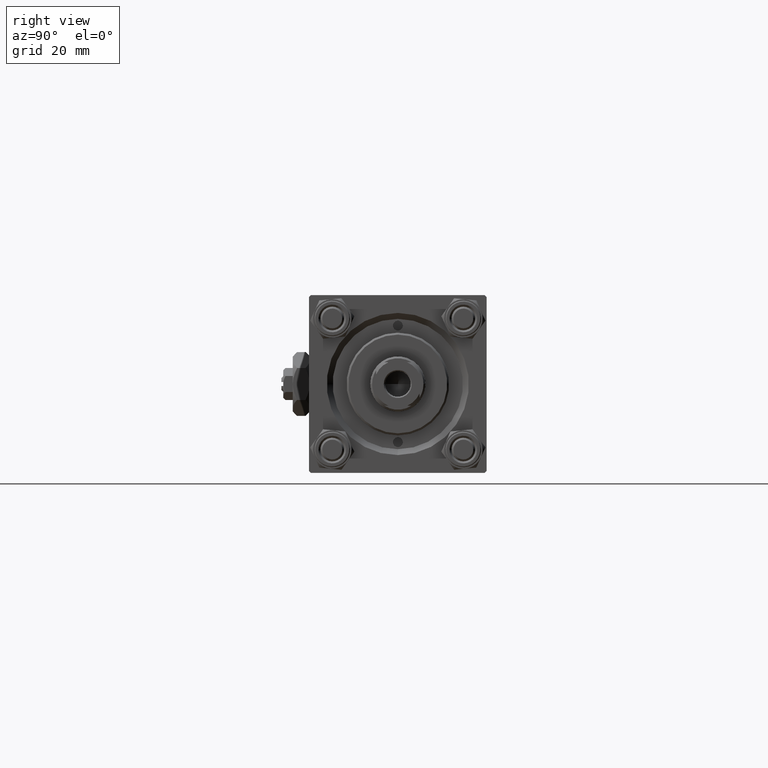
[diagram: clean part render]
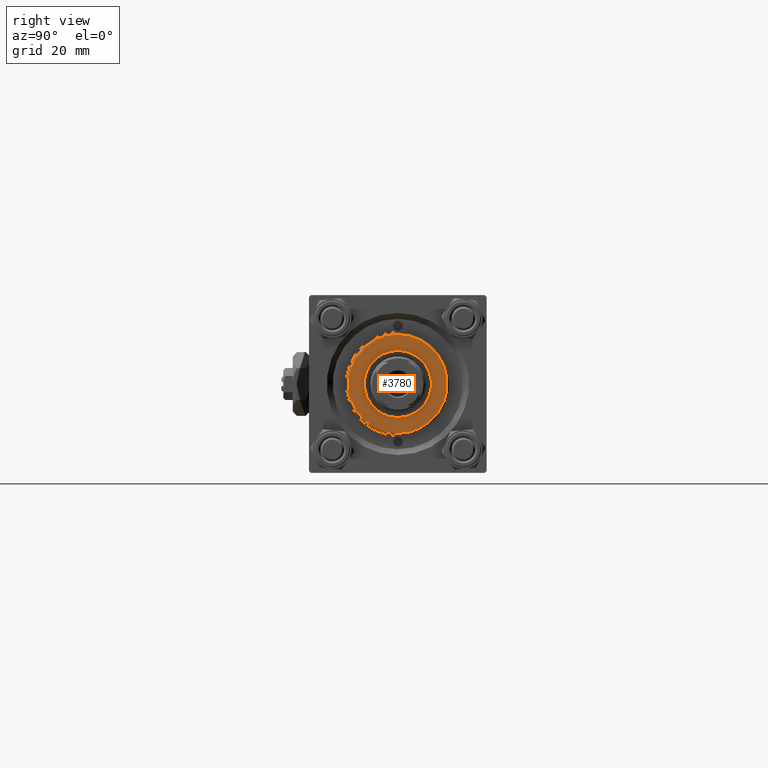
[diagram: same view with one face highlighted and labeled with its STEP entity id]
A machine part, right view. The second image highlights one B-rep face of the part: STEP entity #3780.
In plain terms, the highlighted planar face has unit normal (1, 0, -0).
Its self-contained STEP definition (entity closure, byte-faithful):
#500 = CARTESIAN_POINT ( 'NONE',  ( 12.50000000000001066, 1.561424668912876097E-15, 36.69999999999999574 ) ) ;
#794 = AXIS2_PLACEMENT_3D ( 'NONE', #27751, #41239, #49338 ) ;
#1261 = DIRECTION ( 'NONE',  ( 0.000000000000000000, 0.000000000000000000, 1.000000000000000000 ) ) ;
#2278 = DIRECTION ( 'NONE',  ( 0.000000000000000000, 0.000000000000000000, 1.000000000000000000 ) ) ;
#2439 = EDGE_CURVE ( 'NONE', #30449, #14071, #4502, .T. ) ;
#3276 = AXIS2_PLACEMENT_3D ( 'NONE', #38351, #2278, #17709 ) ;
#3780 = ADVANCED_FACE ( 'NONE', ( #29242, #48562 ), #8846, .T. ) ;
#4502 = CIRCLE ( 'NONE', #41314, 8.500000000000000000 ) ;
#6230 = CIRCLE ( 'NONE', #35441, 12.50000000000001066 ) ;
#7956 = ORIENTED_EDGE ( 'NONE', *, *, #49291, .T. ) ;
#8846 = PLANE ( 'NONE',  #794 ) ;
#9869 = DIRECTION ( 'NONE',  ( 1.000000000000000000, 0.000000000000000000, 0.000000000000000000 ) ) ;
#10444 = AXIS2_PLACEMENT_3D ( 'NONE', #45674, #1261, #9869 ) ;
#10998 = CARTESIAN_POINT ( 'NONE',  ( 0.000000000000000000, 0.000000000000000000, 36.69999999999999574 ) ) ;
#14071 = VERTEX_POINT ( 'NONE', #38181 ) ;
#15099 = ORIENTED_EDGE ( 'NONE', *, *, #39544, .F. ) ;
#17709 = DIRECTION ( 'NONE',  ( 1.000000000000000000, 0.000000000000000000, 0.000000000000000000 ) ) ;
#18636 = DIRECTION ( 'NONE',  ( 1.000000000000000000, 0.000000000000000000, 0.000000000000000000 ) ) ;
#19753 = VERTEX_POINT ( 'NONE', #500 ) ;
#22670 = EDGE_CURVE ( 'NONE', #47489, #19753, #6230, .T. ) ;
#22804 = ORIENTED_EDGE ( 'NONE', *, *, #2439, .F. ) ;
#23019 = DIRECTION ( 'NONE',  ( 0.000000000000000000, 0.000000000000000000, 1.000000000000000000 ) ) ;
#23575 = ORIENTED_EDGE ( 'NONE', *, *, #22670, .T. ) ;
#26227 = CARTESIAN_POINT ( 'NONE',  ( 0.000000000000000000, 0.000000000000000000, 36.69999999999999574 ) ) ;
#27751 = CARTESIAN_POINT ( 'NONE',  ( 0.000000000000000000, 0.000000000000000000, 36.69999999999999574 ) ) ;
#29199 = CIRCLE ( 'NONE', #3276, 12.50000000000001066 ) ;
#29242 = FACE_BOUND ( 'NONE', #50897, .T. ) ;
#30449 = VERTEX_POINT ( 'NONE', #41990 ) ;
#35441 = AXIS2_PLACEMENT_3D ( 'NONE', #26227, #41917, #18636 ) ;
#38181 = CARTESIAN_POINT ( 'NONE',  ( 8.500000000000000000, 0.000000000000000000, 36.69999999999999574 ) ) ;
#38351 = CARTESIAN_POINT ( 'NONE',  ( 0.000000000000000000, 0.000000000000000000, 36.69999999999999574 ) ) ;
#38853 = CIRCLE ( 'NONE', #10444, 8.500000000000000000 ) ;
#39232 = DIRECTION ( 'NONE',  ( 1.000000000000000000, 0.000000000000000000, 0.000000000000000000 ) ) ;
#39544 = EDGE_CURVE ( 'NONE', #14071, #30449, #38853, .T. ) ;
#40880 = EDGE_LOOP ( 'NONE', ( #23575, #7956 ) ) ;
#41239 = DIRECTION ( 'NONE',  ( 0.000000000000000000, 0.000000000000000000, 1.000000000000000000 ) ) ;
#41314 = AXIS2_PLACEMENT_3D ( 'NONE', #10998, #23019, #39232 ) ;
#41917 = DIRECTION ( 'NONE',  ( 0.000000000000000000, 0.000000000000000000, 1.000000000000000000 ) ) ;
#41990 = CARTESIAN_POINT ( 'NONE',  ( -8.500000000000000000, 1.040949779275250140E-15, 36.69999999999999574 ) ) ;
#45674 = CARTESIAN_POINT ( 'NONE',  ( 0.000000000000000000, 0.000000000000000000, 36.69999999999999574 ) ) ;
#47489 = VERTEX_POINT ( 'NONE', #49759 ) ;
#48562 = FACE_OUTER_BOUND ( 'NONE', #40880, .T. ) ;
#49291 = EDGE_CURVE ( 'NONE', #19753, #47489, #29199, .T. ) ;
#49338 = DIRECTION ( 'NONE',  ( 1.000000000000000000, 0.000000000000000000, -0.000000000000000000 ) ) ;
#49759 = CARTESIAN_POINT ( 'NONE',  ( -12.50000000000001066, 0.000000000000000000, 36.69999999999999574 ) ) ;
#50897 = EDGE_LOOP ( 'NONE', ( #15099, #22804 ) ) ;